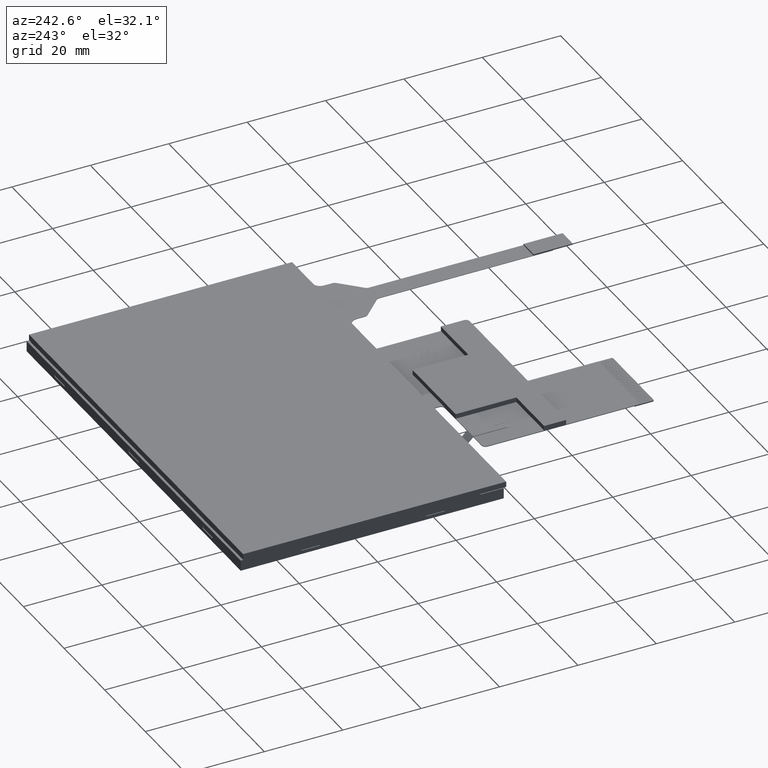
[diagram: clean part render]
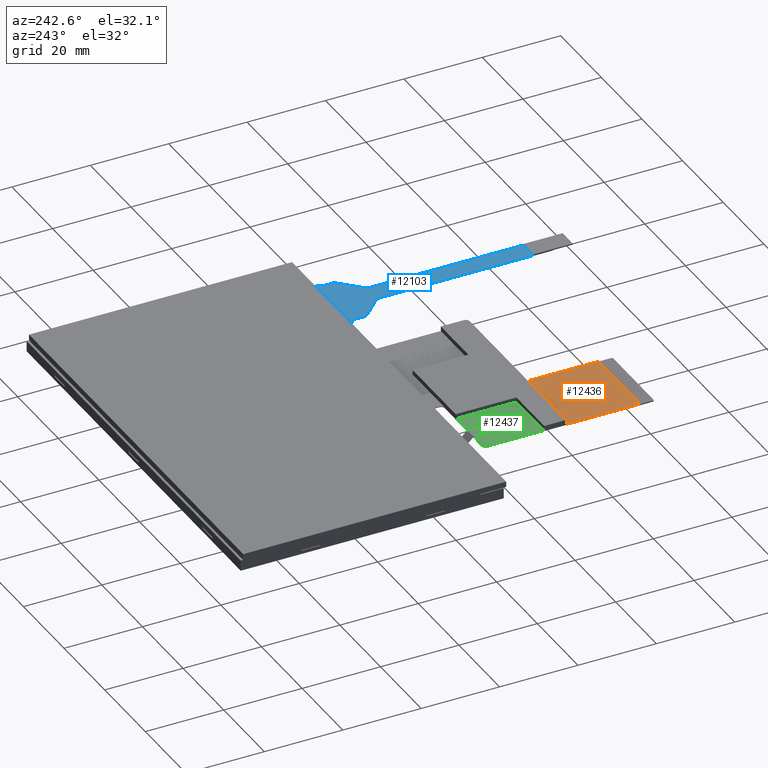
[diagram: same view with three faces highlighted in distinct colors, each labeled with its STEP entity id]
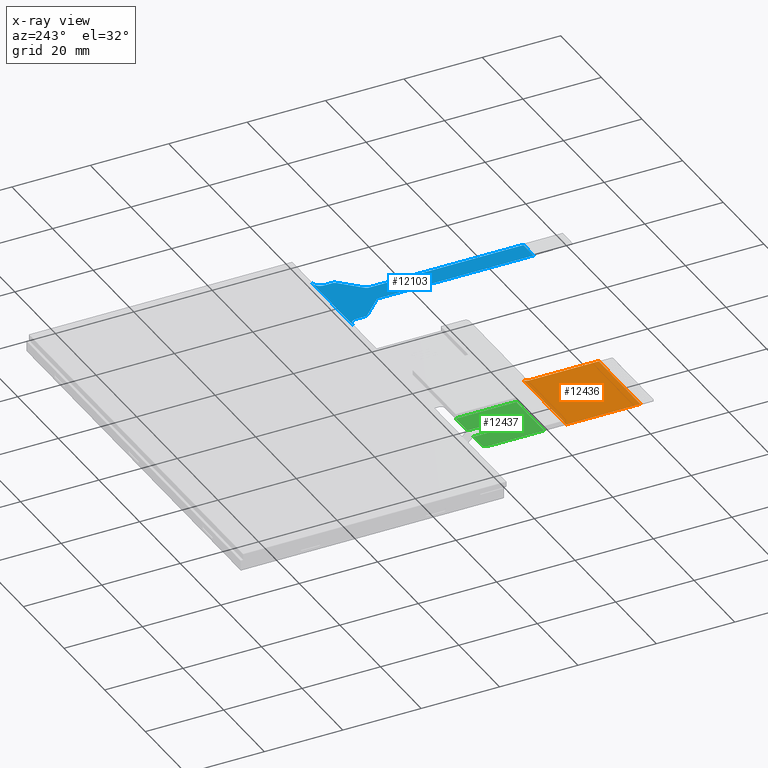
[diagram: x-ray of the same camera — body ghosted, the three highlighted faces saturated]
A machine part, auxiliary view with three faces highlighted in distinct colors.
The next image is the same camera in x-ray (body ghosted, the three faces saturated) — at least one of them is partly hidden behind the body in this view.
Their STEP definitions:

[orange] entity #12436 — the highlighted planar face has unit normal (0, 0, -1).
#256=CIRCLE('',#13211,1.);
#622=FACE_OUTER_BOUND('',#1271,.T.);
#1271=EDGE_LOOP('',(#10030,#10031,#10032,#10033,#10034));
#2499=LINE('',#18874,#4169);
#2500=LINE('',#18876,#4170);
#2501=LINE('',#18878,#4171);
#2502=LINE('',#18880,#4172);
#4169=VECTOR('',#15420,1000.);
#4170=VECTOR('',#15421,1000.);
#4171=VECTOR('',#15422,1000.);
#4172=VECTOR('',#15423,1000.);
#5626=VERTEX_POINT('',#18872);
#5627=VERTEX_POINT('',#18873);
#5628=VERTEX_POINT('',#18875);
#5629=VERTEX_POINT('',#18877);
#5630=VERTEX_POINT('',#18879);
#7182=EDGE_CURVE('',#5626,#5627,#2499,.T.);
#7183=EDGE_CURVE('',#5626,#5628,#2500,.T.);
#7184=EDGE_CURVE('',#5629,#5628,#2501,.T.);
#7185=EDGE_CURVE('',#5629,#5630,#2502,.T.);
#7186=EDGE_CURVE('',#5630,#5627,#256,.T.);
#10030=ORIENTED_EDGE('',*,*,#7182,.F.);
#10031=ORIENTED_EDGE('',*,*,#7183,.T.);
#10032=ORIENTED_EDGE('',*,*,#7184,.F.);
#10033=ORIENTED_EDGE('',*,*,#7185,.T.);
#10034=ORIENTED_EDGE('',*,*,#7186,.T.);
#11823=PLANE('',#13210);
#12436=ADVANCED_FACE('',(#622),#11823,.F.);
#13210=AXIS2_PLACEMENT_3D('',#18871,#15418,#15419);
#13211=AXIS2_PLACEMENT_3D('',#18881,#15424,#15425);
#15418=DIRECTION('center_axis',(5.83882195012889E-17,2.55534994944385E-33,
-1.));
#15419=DIRECTION('ref_axis',(-8.88178419700111E-16,1.,-4.93038065763141E-32));
#15420=DIRECTION('',(1.,8.88178419700111E-16,5.83882195012889E-17));
#15421=DIRECTION('',(8.88178419700111E-16,-1.,4.93038065763141E-32));
#15422=DIRECTION('',(-1.,-8.88178419700111E-16,-5.83882195012889E-17));
#15423=DIRECTION('',(-8.88178419700111E-16,1.,-4.93038065763141E-32));
#15424=DIRECTION('center_axis',(5.83882195012889E-17,2.55534994944385E-33,
-1.));
#15425=DIRECTION('ref_axis',(-8.88178419700111E-16,1.,-4.93038065763141E-32));
#18871=CARTESIAN_POINT('Origin',(-10.0258713214483,-58.5289709189054,-2.19199999999993));
#18872=CARTESIAN_POINT('',(-34.2458713214483,-61.4259709189054,-2.19199999999993));
#18873=CARTESIAN_POINT('',(-12.7458713214483,-61.4259709189053,-2.19199999999993));
#18874=CARTESIAN_POINT('',(-34.2458713214483,-61.4259709189054,-2.19199999999993));
#18875=CARTESIAN_POINT('',(-34.2458713214483,-80.3759709189054,-2.19199999999993));
#18876=CARTESIAN_POINT('',(-34.2458713214484,-40.3559709189054,-2.19199999999993));
#18877=CARTESIAN_POINT('',(-13.7458713214483,-80.3759709189053,-2.19199999999993));
#18878=CARTESIAN_POINT('',(-34.2458713214483,-80.3759709189054,-2.19199999999993));
#18879=CARTESIAN_POINT('',(-13.7458713214483,-62.4259709189054,-2.19199999999993));
#18880=CARTESIAN_POINT('',(-13.7458713214483,-83.8759709189054,-2.19199999999993));
#18881=CARTESIAN_POINT('Origin',(-12.7458713214483,-62.4259709189054,-2.19199999999993));

[blue] entity #12103 — the highlighted planar face has unit normal (0, -0, 1).
#139=CIRCLE('',#12761,1.00000000000001);
#140=CIRCLE('',#12762,0.999999999999937);
#141=CIRCLE('',#12763,2.);
#142=CIRCLE('',#12764,2.);
#143=CIRCLE('',#12765,1.00000000000004);
#144=CIRCLE('',#12766,1.00000000000002);
#289=FACE_OUTER_BOUND('',#917,.T.);
#917=EDGE_LOOP('',(#8059,#8060,#8061,#8062,#8063,#8064,#8065,#8066,#8067,
#8068,#8069,#8070,#8071,#8072));
#1637=LINE('',#16914,#3307);
#1640=LINE('',#16921,#3310);
#1641=LINE('',#16925,#3311);
#1642=LINE('',#16929,#3312);
#1643=LINE('',#16934,#3313);
#1644=LINE('',#16938,#3314);
#1645=LINE('',#16942,#3315);
#1646=LINE('',#16943,#3316);
#3307=VECTOR('',#13656,10.);
#3310=VECTOR('',#13661,10.);
#3311=VECTOR('',#13664,10.);
#3312=VECTOR('',#13667,10.);
#3313=VECTOR('',#13672,10.);
#3314=VECTOR('',#13675,10.);
#3315=VECTOR('',#13678,10.);
#3316=VECTOR('',#13679,10.);
#4978=VERTEX_POINT('',#16910);
#4980=VERTEX_POINT('',#16913);
#4982=VERTEX_POINT('',#16919);
#4983=VERTEX_POINT('',#16920);
#4984=VERTEX_POINT('',#16922);
#4985=VERTEX_POINT('',#16924);
#4986=VERTEX_POINT('',#16926);
#4987=VERTEX_POINT('',#16928);
#4988=VERTEX_POINT('',#16931);
#4989=VERTEX_POINT('',#16933);
#4990=VERTEX_POINT('',#16935);
#4991=VERTEX_POINT('',#16937);
#4992=VERTEX_POINT('',#16939);
#4993=VERTEX_POINT('',#16941);
#6203=EDGE_CURVE('',#4978,#4980,#1637,.T.);
#6206=EDGE_CURVE('',#4982,#4983,#1640,.T.);
#6207=EDGE_CURVE('',#4984,#4982,#139,.T.);
#6208=EDGE_CURVE('',#4985,#4984,#1641,.T.);
#6209=EDGE_CURVE('',#4986,#4985,#140,.T.);
#6210=EDGE_CURVE('',#4987,#4986,#1642,.T.);
#6211=EDGE_CURVE('',#4980,#4987,#141,.T.);
#6212=EDGE_CURVE('',#4988,#4978,#142,.T.);
#6213=EDGE_CURVE('',#4989,#4988,#1643,.T.);
#6214=EDGE_CURVE('',#4990,#4989,#143,.T.);
#6215=EDGE_CURVE('',#4991,#4990,#1644,.T.);
#6216=EDGE_CURVE('',#4992,#4991,#144,.T.);
#6217=EDGE_CURVE('',#4993,#4992,#1645,.T.);
#6218=EDGE_CURVE('',#4993,#4983,#1646,.T.);
#8059=ORIENTED_EDGE('',*,*,#6206,.F.);
#8060=ORIENTED_EDGE('',*,*,#6207,.F.);
#8061=ORIENTED_EDGE('',*,*,#6208,.F.);
#8062=ORIENTED_EDGE('',*,*,#6209,.F.);
#8063=ORIENTED_EDGE('',*,*,#6210,.F.);
#8064=ORIENTED_EDGE('',*,*,#6211,.F.);
#8065=ORIENTED_EDGE('',*,*,#6203,.F.);
#8066=ORIENTED_EDGE('',*,*,#6212,.F.);
#8067=ORIENTED_EDGE('',*,*,#6213,.F.);
#8068=ORIENTED_EDGE('',*,*,#6214,.F.);
#8069=ORIENTED_EDGE('',*,*,#6215,.F.);
#8070=ORIENTED_EDGE('',*,*,#6216,.F.);
#8071=ORIENTED_EDGE('',*,*,#6217,.F.);
#8072=ORIENTED_EDGE('',*,*,#6218,.T.);
#11556=PLANE('',#12760);
#12103=ADVANCED_FACE('',(#289),#11556,.T.);
#12760=AXIS2_PLACEMENT_3D('',#16918,#13659,#13660);
#12761=AXIS2_PLACEMENT_3D('',#16923,#13662,#13663);
#12762=AXIS2_PLACEMENT_3D('',#16927,#13665,#13666);
#12763=AXIS2_PLACEMENT_3D('',#16930,#13668,#13669);
#12764=AXIS2_PLACEMENT_3D('',#16932,#13670,#13671);
#12765=AXIS2_PLACEMENT_3D('',#16936,#13673,#13674);
#12766=AXIS2_PLACEMENT_3D('',#16940,#13676,#13677);
#13656=DIRECTION('',(1.,0.,-1.99816100872118E-32));
#13659=DIRECTION('center_axis',(1.99816100872118E-32,-4.49466046699647E-32,
1.));
#13660=DIRECTION('ref_axis',(1.,0.,-1.99816100872118E-32));
#13661=DIRECTION('',(1.79584612326154E-16,-1.,0.));
#13662=DIRECTION('center_axis',(0.,0.,1.));
#13663=DIRECTION('ref_axis',(0.709027386509708,-0.705180944991577,0.));
#13664=DIRECTION('',(-0.705180944991576,-0.709027386509708,0.));
#13665=DIRECTION('center_axis',(0.,0.,-1.));
#13666=DIRECTION('ref_axis',(0.709027386509713,-0.705180944991572,0.));
#13667=DIRECTION('',(4.06046919267675E-15,-1.,0.));
#13668=DIRECTION('center_axis',(0.,0.,1.));
#13669=DIRECTION('ref_axis',(0.,-1.,0.));
#13670=DIRECTION('center_axis',(0.,0.,1.));
#13671=DIRECTION('ref_axis',(-1.,0.,0.));
#13672=DIRECTION('',(4.06046919267675E-15,1.,0.));
#13673=DIRECTION('center_axis',(0.,0.,-1.));
#13674=DIRECTION('ref_axis',(-1.,0.,0.));
#13675=DIRECTION('',(-0.705180944991575,0.709027386509709,0.));
#13676=DIRECTION('center_axis',(0.,0.,1.));
#13677=DIRECTION('ref_axis',(-1.,0.,0.));
#13678=DIRECTION('',(-2.69376918489231E-16,1.,0.));
#13679=DIRECTION('',(1.,8.98105529259288E-64,-1.99816100872118E-32));
#16910=CARTESIAN_POINT('',(22.75,-36.55,-0.188));
#16913=CARTESIAN_POINT('',(42.75,-36.55,-0.188));
#16914=CARTESIAN_POINT('',(42.7,-36.55,-0.188));
#16918=CARTESIAN_POINT('Origin',(32.75,-62.4838362883543,-0.188));
#16919=CARTESIAN_POINT('',(35.25,-47.092621208155,-0.188));
#16920=CARTESIAN_POINT('',(35.25,-86.55,-0.188));
#16921=CARTESIAN_POINT('',(35.25,-96.55,-0.188));
#16922=CARTESIAN_POINT('',(35.5409726134903,-46.3874402631634,-0.188));
#16923=CARTESIAN_POINT('Origin',(36.25,-47.092621208155,-0.188));
#16924=CARTESIAN_POINT('',(40.4590273865097,-41.4425597368366,-0.188));
#16925=CARTESIAN_POINT('',(35.5409726134903,-46.3874402631634,-0.188));
#16926=CARTESIAN_POINT('',(40.75,-40.737378791845,-0.188));
#16927=CARTESIAN_POINT('Origin',(39.75,-40.737378791845,-0.188));
#16928=CARTESIAN_POINT('',(40.75,-38.55,-0.188));
#16929=CARTESIAN_POINT('',(40.75,-40.737378791845,-0.188));
#16930=CARTESIAN_POINT('Origin',(42.75,-38.55,-0.188));
#16931=CARTESIAN_POINT('',(24.75,-38.55,-0.188));
#16932=CARTESIAN_POINT('Origin',(22.75,-38.55,-0.188));
#16933=CARTESIAN_POINT('',(24.75,-40.737378791845,-0.188));
#16934=CARTESIAN_POINT('',(24.75,-38.55,-0.188));
#16935=CARTESIAN_POINT('',(25.0409726134903,-41.4425597368366,-0.188));
#16936=CARTESIAN_POINT('Origin',(25.75,-40.737378791845,-0.188));
#16937=CARTESIAN_POINT('',(29.9590273865097,-46.3874402631634,-0.188));
#16938=CARTESIAN_POINT('',(25.0409726134903,-41.4425597368366,-0.188));
#16939=CARTESIAN_POINT('',(30.25,-47.092621208155,-0.188));
#16940=CARTESIAN_POINT('Origin',(29.25,-47.092621208155,-0.188));
#16941=CARTESIAN_POINT('',(30.25,-86.55,-0.188));
#16942=CARTESIAN_POINT('',(30.25,-47.092621208155,-0.188));
#16943=CARTESIAN_POINT('',(34.,-86.55,-0.188));

[green] entity #12437 — the highlighted planar face has unit normal (0, 0, -1).
#257=CIRCLE('',#13213,1.);
#623=FACE_OUTER_BOUND('',#1272,.T.);
#1272=EDGE_LOOP('',(#10035,#10036,#10037,#10038,#10039,#10040,#10041,#10042,
#10043,#10044,#10045,#10046,#10047,#10048,#10049,#10050,#10051));
#1964=LINE('',#17729,#3634);
#2404=LINE('',#18647,#4074);
#2428=LINE('',#18715,#4098);
#2435=LINE('',#18727,#4105);
#2454=LINE('',#18779,#4124);
#2462=LINE('',#18794,#4132);
#2465=LINE('',#18800,#4135);
#2468=LINE('',#18807,#4138);
#2503=LINE('',#18886,#4173);
#2504=LINE('',#18888,#4174);
#2505=LINE('',#18889,#4175);
#2506=LINE('',#18890,#4176);
#2507=LINE('',#18892,#4177);
#2508=LINE('',#18894,#4178);
#2509=LINE('',#18896,#4179);
#2510=LINE('',#18897,#4180);
#3634=VECTOR('',#14431,10.);
#4074=VECTOR('',#15179,10.);
#4098=VECTOR('',#15289,10.);
#4105=VECTOR('',#15296,10.);
#4124=VECTOR('',#15359,1000.);
#4132=VECTOR('',#15367,1000.);
#4135=VECTOR('',#15372,1000.);
#4138=VECTOR('',#15379,1000.);
#4173=VECTOR('',#15430,1000.);
#4174=VECTOR('',#15431,1000.);
#4175=VECTOR('',#15432,1000.);
#4176=VECTOR('',#15433,1000.);
#4177=VECTOR('',#15434,1000.);
#4178=VECTOR('',#15435,1000.);
#4179=VECTOR('',#15436,1000.);
#4180=VECTOR('',#15437,1000.);
#5242=VERTEX_POINT('',#17725);
#5244=VERTEX_POINT('',#17728);
#5563=VERTEX_POINT('',#18632);
#5568=VERTEX_POINT('',#18645);
#5569=VERTEX_POINT('',#18714);
#5573=VERTEX_POINT('',#18724);
#5574=VERTEX_POINT('',#18726);
#5585=VERTEX_POINT('',#18778);
#5592=VERTEX_POINT('',#18792);
#5594=VERTEX_POINT('',#18798);
#5596=VERTEX_POINT('',#18806);
#5631=VERTEX_POINT('',#18883);
#5632=VERTEX_POINT('',#18885);
#5633=VERTEX_POINT('',#18887);
#5634=VERTEX_POINT('',#18891);
#5635=VERTEX_POINT('',#18893);
#5636=VERTEX_POINT('',#18895);
#6610=EDGE_CURVE('',#5244,#5242,#1964,.T.);
#7082=EDGE_CURVE('',#5563,#5568,#2404,.T.);
#7106=EDGE_CURVE('',#5568,#5569,#2428,.T.);
#7113=EDGE_CURVE('',#5574,#5573,#2435,.T.);
#7136=EDGE_CURVE('',#5585,#5563,#2454,.T.);
#7144=EDGE_CURVE('',#5242,#5592,#2462,.T.);
#7147=EDGE_CURVE('',#5594,#5569,#2465,.T.);
#7150=EDGE_CURVE('',#5596,#5574,#2468,.T.);
#7187=EDGE_CURVE('',#5592,#5631,#257,.T.);
#7188=EDGE_CURVE('',#5631,#5632,#2503,.T.);
#7189=EDGE_CURVE('',#5633,#5632,#2504,.T.);
#7190=EDGE_CURVE('',#5585,#5633,#2505,.T.);
#7191=EDGE_CURVE('',#5596,#5594,#2506,.T.);
#7192=EDGE_CURVE('',#5634,#5573,#2507,.T.);
#7193=EDGE_CURVE('',#5635,#5634,#2508,.T.);
#7194=EDGE_CURVE('',#5635,#5636,#2509,.T.);
#7195=EDGE_CURVE('',#5636,#5244,#2510,.T.);
#10035=ORIENTED_EDGE('',*,*,#6610,.T.);
#10036=ORIENTED_EDGE('',*,*,#7144,.T.);
#10037=ORIENTED_EDGE('',*,*,#7187,.T.);
#10038=ORIENTED_EDGE('',*,*,#7188,.T.);
#10039=ORIENTED_EDGE('',*,*,#7189,.F.);
#10040=ORIENTED_EDGE('',*,*,#7190,.F.);
#10041=ORIENTED_EDGE('',*,*,#7136,.T.);
#10042=ORIENTED_EDGE('',*,*,#7082,.T.);
#10043=ORIENTED_EDGE('',*,*,#7106,.T.);
#10044=ORIENTED_EDGE('',*,*,#7147,.F.);
#10045=ORIENTED_EDGE('',*,*,#7191,.F.);
#10046=ORIENTED_EDGE('',*,*,#7150,.T.);
#10047=ORIENTED_EDGE('',*,*,#7113,.T.);
#10048=ORIENTED_EDGE('',*,*,#7192,.F.);
#10049=ORIENTED_EDGE('',*,*,#7193,.F.);
#10050=ORIENTED_EDGE('',*,*,#7194,.T.);
#10051=ORIENTED_EDGE('',*,*,#7195,.T.);
#11824=PLANE('',#13212);
#12437=ADVANCED_FACE('',(#623),#11824,.F.);
#13212=AXIS2_PLACEMENT_3D('',#18882,#15426,#15427);
#13213=AXIS2_PLACEMENT_3D('',#18884,#15428,#15429);
#14431=DIRECTION('',(-8.88178419700111E-16,1.,-4.93038065763141E-32));
#15179=DIRECTION('',(8.88178419700111E-16,-1.,4.93038065763141E-32));
#15289=DIRECTION('',(-1.,-8.88178419700111E-16,-5.83882195012889E-17));
#15296=DIRECTION('',(-1.,-8.88178419700111E-16,-5.83882195012889E-17));
#15359=DIRECTION('',(-1.,-8.88178419700111E-16,-5.83882195012889E-17));
#15367=DIRECTION('',(-1.,-8.88178419700111E-16,-5.83882195012889E-17));
#15372=DIRECTION('',(-8.88178419700111E-16,1.,-4.93038065763141E-32));
#15379=DIRECTION('',(-8.88178419700111E-16,1.,-4.93038065763141E-32));
#15426=DIRECTION('center_axis',(5.83882195012889E-17,2.55534994944385E-33,
-1.));
#15427=DIRECTION('ref_axis',(-8.88178419700111E-16,1.,-4.93038065763141E-32));
#15428=DIRECTION('center_axis',(-5.83882195012889E-17,-2.55534994944385E-33,
1.));
#15429=DIRECTION('ref_axis',(-8.88178419700111E-16,1.,-4.93038065763141E-32));
#15430=DIRECTION('',(8.88178419700111E-16,-1.,4.93038065763141E-32));
#15431=DIRECTION('',(-1.,-8.88178419700111E-16,-5.83882195012889E-17));
#15432=DIRECTION('',(8.88178419700111E-16,-1.,4.93038065763141E-32));
#15433=DIRECTION('',(1.,8.88178419700111E-16,5.83882195012889E-17));
#15434=DIRECTION('',(-8.88178419700111E-16,1.,-4.93038065763141E-32));
#15435=DIRECTION('',(1.,8.88178419700111E-16,5.83882195012889E-17));
#15436=DIRECTION('',(-8.88178419700111E-16,1.,-4.93038065763141E-32));
#15437=DIRECTION('',(1.,8.88178419700111E-16,5.83882195012889E-17));
#17725=CARTESIAN_POINT('',(-29.246379384189,-40.3559709189054,-2.19199999999993));
#17728=CARTESIAN_POINT('',(-29.246379384189,-46.4259709189054,-2.19199999999993));
#17729=CARTESIAN_POINT('',(-29.246379384189,-48.4004854594536,-2.19199999999993));
#18632=CARTESIAN_POINT('',(-26.246379384189,-40.3559709189054,-2.19199999999993));
#18645=CARTESIAN_POINT('',(-26.246379384189,-49.0420000000018,-2.19199999999993));
#18647=CARTESIAN_POINT('',(-26.246379384189,-48.4004854594536,-2.19199999999993));
#18714=CARTESIAN_POINT('',(-26.3458713214484,-49.0420000000018,-2.19199999999993));
#18715=CARTESIAN_POINT('',(-18.1361253528187,-49.0420000000018,-2.19199999999993));
#18724=CARTESIAN_POINT('',(-28.3458713214484,-49.0420000000018,-2.19199999999993));
#18726=CARTESIAN_POINT('',(-27.3458713214484,-49.0420000000018,-2.19199999999993));
#18727=CARTESIAN_POINT('',(-18.1361253528187,-49.0420000000018,-2.19199999999993));
#18778=CARTESIAN_POINT('',(-20.5458713214484,-40.3559709189054,-2.19199999999993));
#18779=CARTESIAN_POINT('',(-34.2458713214484,-40.3559709189054,-2.19199999999993));
#18792=CARTESIAN_POINT('',(-33.2458713214484,-40.3559709189054,-2.19199999999993));
#18794=CARTESIAN_POINT('',(-34.2458713214484,-40.3559709189054,-2.19199999999993));
#18798=CARTESIAN_POINT('',(-26.3458713214484,-50.3259709189054,-2.19199999999993));
#18800=CARTESIAN_POINT('',(-26.3458713214484,-50.3259709189054,-2.19199999999993));
#18806=CARTESIAN_POINT('',(-27.3458713214484,-50.3259709189054,-2.19199999999993));
#18807=CARTESIAN_POINT('',(-27.3458713214484,-50.3259709189054,-2.19199999999993));
#18882=CARTESIAN_POINT('Origin',(-10.0258713214483,-58.5289709189054,-2.19199999999993));
#18883=CARTESIAN_POINT('',(-34.2458713214484,-41.3559709189054,-2.19199999999993));
#18884=CARTESIAN_POINT('Origin',(-33.2458713214484,-41.3559709189054,-2.19199999999993));
#18885=CARTESIAN_POINT('',(-34.2458713214484,-55.8259709189054,-2.19199999999993));
#18886=CARTESIAN_POINT('',(-34.2458713214484,-40.3559709189054,-2.19199999999993));
#18887=CARTESIAN_POINT('',(-20.5458713214484,-55.8259709189054,-2.19199999999993));
#18888=CARTESIAN_POINT('',(-34.2458713214484,-55.8259709189054,-2.19199999999993));
#18889=CARTESIAN_POINT('',(-20.5458713214484,-55.8259709189054,-2.19199999999993));
#18890=CARTESIAN_POINT('',(-27.3458713214484,-50.3259709189054,-2.19199999999993));
#18891=CARTESIAN_POINT('',(-28.3458713214484,-50.3259709189054,-2.19199999999993));
#18892=CARTESIAN_POINT('',(-28.3458713214484,-50.3259709189054,-2.19199999999993));
#18893=CARTESIAN_POINT('',(-29.3458713214484,-50.3259709189054,-2.19199999999993));
#18894=CARTESIAN_POINT('',(-29.3458713214484,-50.3259709189054,-2.19199999999993));
#18895=CARTESIAN_POINT('',(-29.3458713214484,-46.4259709189054,-2.19199999999993));
#18896=CARTESIAN_POINT('',(-29.3458713214484,-50.3259709189054,-2.19199999999993));
#18897=CARTESIAN_POINT('',(-29.3458713214484,-46.4259709189054,-2.19199999999993));